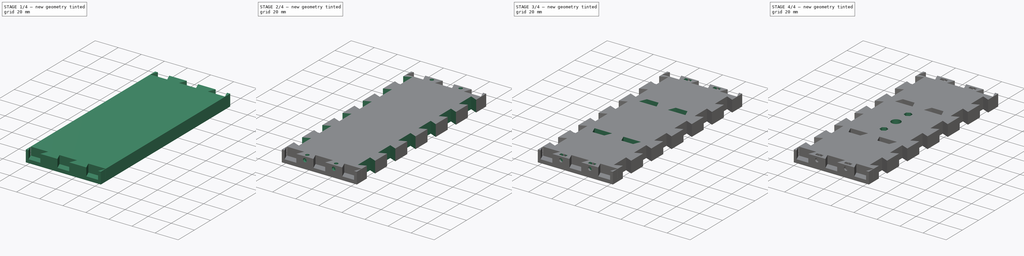
[diagram: build sequence overview — one tinted view per stage of 4, left to right]
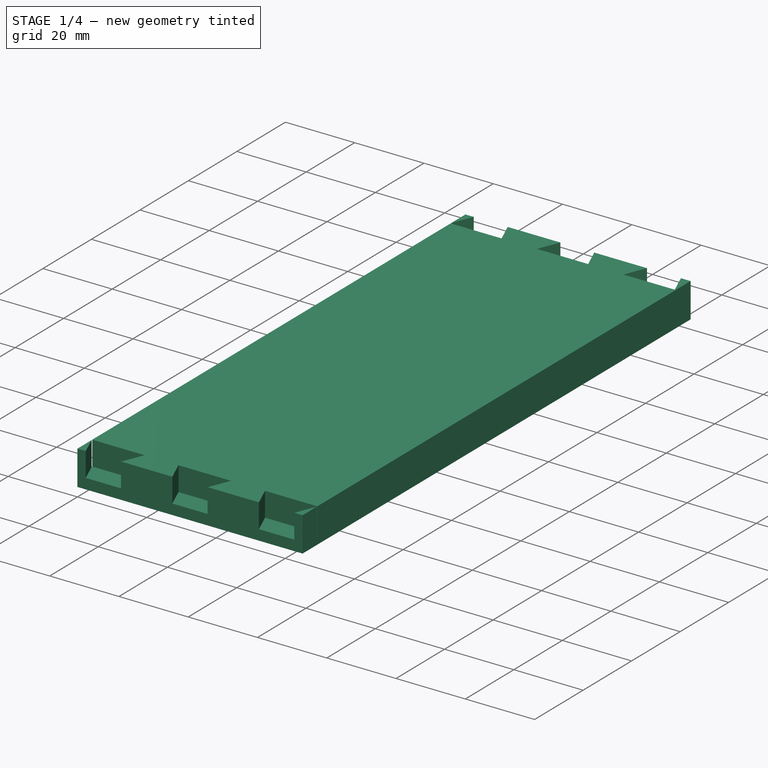
[diagram: stage 1 of 4 — iso view after this stage's code; geometry added in this stage tinted green]
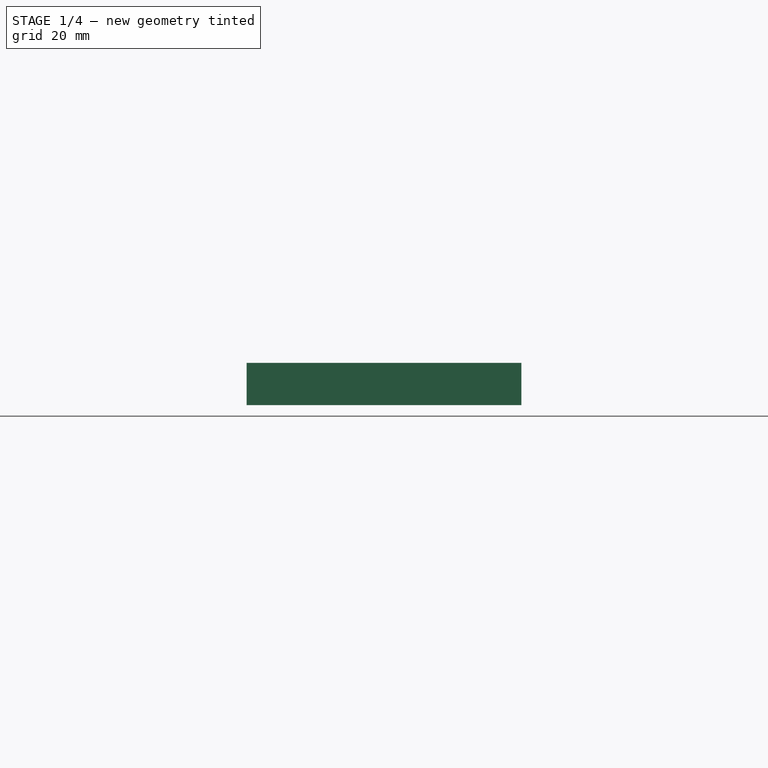
[diagram: stage 1 of 4 — front view after this stage's code; geometry added in this stage tinted green]
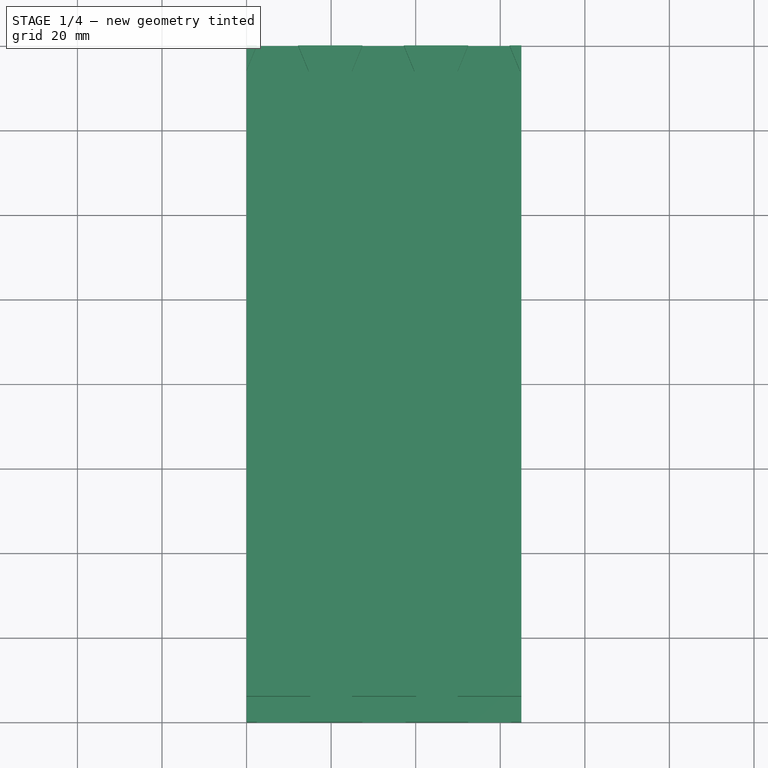
[diagram: stage 1 of 4 — top view after this stage's code; geometry added in this stage tinted green]
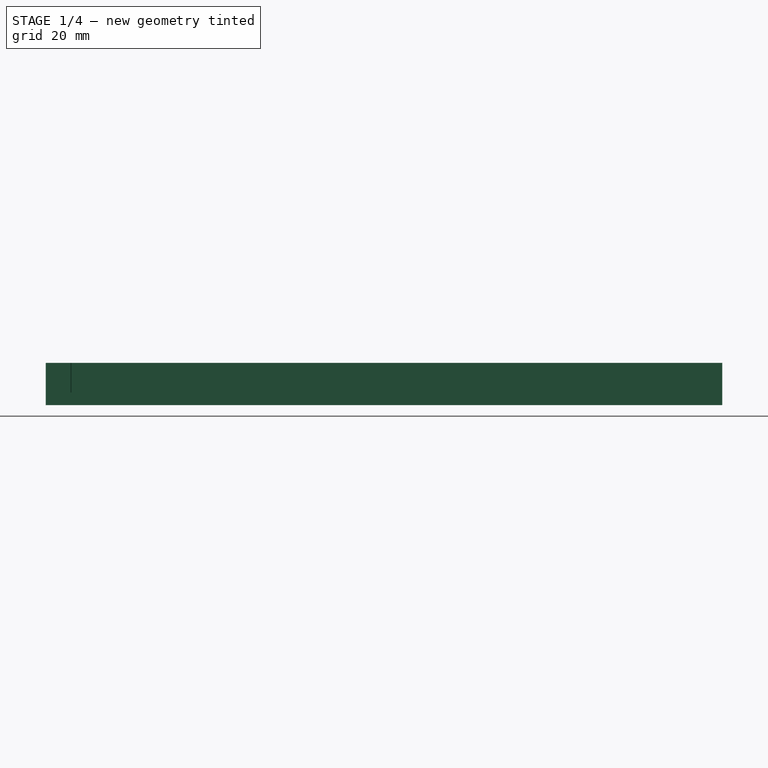
[diagram: stage 1 of 4 — right view after this stage's code; geometry added in this stage tinted green]
FCSTD DOCUMENT  (FreeCAD 0.17R13541 (Git))
Label: cross_beam_v2
License: All rights reserved
LicenseURL: http://en.wikipedia.org/wiki/All_rights_reserved
objects: Sketcher::SketchObject×10, PartDesign::Pocket×9, PartDesign::Pad×1, PartDesign::Body×1
note: 31 computed .brp shape members not serialized (recipe doc carries the construction recipe); baked Part::Feature solids carry a one-line shape summary decoded from their .brp

FEATURE [Sketcher::SketchObject] Sketch
  MapMode = 5
  Support = -> [XY_Plane]
  sketch-geometry (4):
    g0: LineSegment StartX=0 StartY=160 StartZ=0 EndX=65 EndY=160 EndZ=0
    g1: LineSegment StartX=65 StartY=160 StartZ=0 EndX=65 EndY=0 EndZ=0
    g2: LineSegment StartX=65 StartY=0 StartZ=0 EndX=0 EndY=0 EndZ=0
    g3: LineSegment StartX=0 StartY=0 StartZ=0 EndX=0 EndY=160 EndZ=0
  constraints (11):
    c: Coincident(g0,g1)
    c: Coincident(g1,g2)
    c: Coincident(g2,g3)
    c: Coincident(g3,g0)
    c: Horizontal(g0)
    c: Horizontal(g2)
    c: Vertical(g1)
    c: Vertical(g3)
    c: Coincident(g2,g-1)
    c: DistanceX(g0,g0) = 65
    c: DistanceY(g3,g3) = 160
FEATURE [PartDesign::Pad] Pad
  Length = 10
  Length2 = 100
  Profile = -> Sketch
  Type = 0
FEATURE [Sketcher::SketchObject] Sketch001
  ExternalGeometry = -> [Pad]
  MapMode = 5
  Placement = pos=(0,0,10) rot=(0,0,1;0rad)
  Support = -> [Pad]
  sketch-geometry (24):
    g0: LineSegment StartX=24.9 StartY=6.1 StartZ=0 EndX=40.1 EndY=6.1 EndZ=0
    g1: LineSegment StartX=27.4 StartY=0 StartZ=0 EndX=37.6 EndY=0 EndZ=0
    g2: LineSegment StartX=24.9 StartY=6.1 StartZ=0 EndX=27.4 EndY=0 EndZ=0
    g3: LineSegment StartX=40.1 StartY=6.1 StartZ=0 EndX=37.6 EndY=0 EndZ=0
    g4: LineSegment StartX=49.9 StartY=6.1 StartZ=0 EndX=65.1 EndY=6.1 EndZ=0
    g5: LineSegment StartX=52.4 StartY=0 StartZ=0 EndX=62.6 EndY=0 EndZ=0
    g6: LineSegment StartX=49.9 StartY=6.1 StartZ=0 EndX=52.4 EndY=0 EndZ=0
    g7: LineSegment StartX=65.1 StartY=6.1 StartZ=0 EndX=62.6 EndY=0 EndZ=0
    g8: LineSegment StartX=-0.1 StartY=6.1 StartZ=0 EndX=15.1 EndY=6.1 EndZ=0
    g9: LineSegment StartX=2.4 StartY=0 StartZ=0 EndX=12.6 EndY=0 EndZ=0
    g10: LineSegment StartX=-0.1 StartY=6.1 StartZ=0 EndX=2.4 EndY=0 EndZ=0
    g11: LineSegment StartX=15.1 StartY=6.1 StartZ=0 EndX=12.6 EndY=0 EndZ=0
    g12: LineSegment StartX=39.7 StartY=153.9 StartZ=0 EndX=24.9 EndY=153.9 EndZ=0
    g13: LineSegment StartX=37.2 StartY=160 StartZ=0 EndX=27.4 EndY=160 EndZ=0
    g14: LineSegment StartX=39.7 StartY=153.9 StartZ=0 EndX=37.2 EndY=160 EndZ=0
    g15: LineSegment StartX=24.9 StartY=153.9 StartZ=0 EndX=27.4 EndY=160 EndZ=0
    g16: LineSegment StartX=14.7 StartY=153.9 StartZ=0 EndX=-0.1 EndY=153.9 EndZ=0
    g17: LineSegment StartX=12.2 StartY=160 StartZ=0 EndX=2.4 EndY=160 EndZ=0
    g18: LineSegment StartX=14.7 StartY=153.9 StartZ=0 EndX=12.2 EndY=160 EndZ=0
    g19: LineSegment StartX=-0.1 StartY=153.9 StartZ=0 EndX=2.4 EndY=160 EndZ=0
    g20: LineSegment StartX=64.7 StartY=153.9 StartZ=0 EndX=49.9 EndY=153.9 EndZ=0
    g21: LineSegment StartX=62.2 StartY=160 StartZ=0 EndX=52.4 EndY=160 EndZ=0
    g22: LineSegment StartX=64.7 StartY=153.9 StartZ=0 EndX=62.2 EndY=160 EndZ=0
    g23: LineSegment StartX=49.9 StartY=153.9 StartZ=0 EndX=52.4 EndY=160 EndZ=0
  constraints (73):
    c: Horizontal(g0)
    c: Horizontal(g1)
    c: Coincident(g0,g2)
    c: Coincident(g0,g3)
    c: Coincident(g1,g2)
    c: Coincident(g1,g3)
    c: DistanceX(g0,g0) = 15.2
    c: DistanceX(g1,g1) = 10.2
    c: DistanceY(g1,g0) = 6.1
    c: Equal(g3,g2)
    c: Horizontal(g4)
    c: Horizontal(g5)
    c: Coincident(g4,g6)
    c: Coincident(g4,g7)
    c: Coincident(g5,g6)
    c: Coincident(g5,g7)
    c: Equal(g0,g4) = 15.2
    c: Equal(g1,g5) = 10.2
    c: DistanceY(g5,g4) = 6.1
    c: Equal(g7,g6)
    c: Horizontal(g8)
    c: Horizontal(g9)
    c: Coincident(g8,g10)
    c: Coincident(g8,g11)
    c: Coincident(g9,g10)
    c: Coincident(g9,g11)
    c: Equal(g0,g8) = 15.2
    c: Equal(g1,g9) = 10.2
    c: DistanceY(g9,g8) = 6.1
    c: Equal(g11,g10)
    c: PointOnObject(g9,g-1)
    c: PointOnObject(g1,g-1)
    c: PointOnObject(g5,g-1)
    c: DistanceX(g0,g4) = 9.8
    c: DistanceX(g8,g0) = 9.8
    c: DistanceX(g-1,g1) = 27.4
    c: Horizontal(g12)
    c: Horizontal(g13)
    c: Coincident(g12,g14)
    c: Coincident(g12,g15)
    c: Coincident(g13,g14)
    c: Coincident(g13,g15)
    c: Horizontal(g16)
    c: Horizontal(g17)
    c: Coincident(g16,g18)
    c: Coincident(g16,g19)
    c: Coincident(g17,g18)
    c: Coincident(g17,g19)
    c: Equal(g12,g16) = 15.2
    c: Equal(g13,g17) = 10.2
    c: Horizontal(g20)
    c: Horizontal(g21)
    c: Coincident(g20,g22)
    c: Coincident(g20,g23)
    c: Coincident(g21,g22)
    c: Coincident(g21,g23)
    c: Equal(g12,g20) = 15.2
    c: Equal(g13,g21) = 10.2
    c: PointOnObject(g17,g-4)
    c: PointOnObject(g13,g-4)
    c: PointOnObject(g21,g-4)
    c: DistanceX(g17,g13) = 15.2
    c: DistanceX(g13,g21) = 15.2
    c: DistanceX(g12,g20) = 10.2
    c: DistanceX(g16,g12) = 10.2
    c: Equal(g19,g18)
    c: Equal(g18,g15)
    c: Equal(g15,g14)
    c: Equal(g14,g23)
    c: Equal(g23,g22)
    c: DistanceY(g16,g-4) = 6.1
    c: DistanceX(g17,g17) = 9.8
    c: DistanceX(g-4,g13) = 27.4
FEATURE [PartDesign::Pocket] Pocket
  BaseFeature = -> Pad
  Length = 7
  Length2 = 100
  Profile = -> Sketch001
  Type = 0
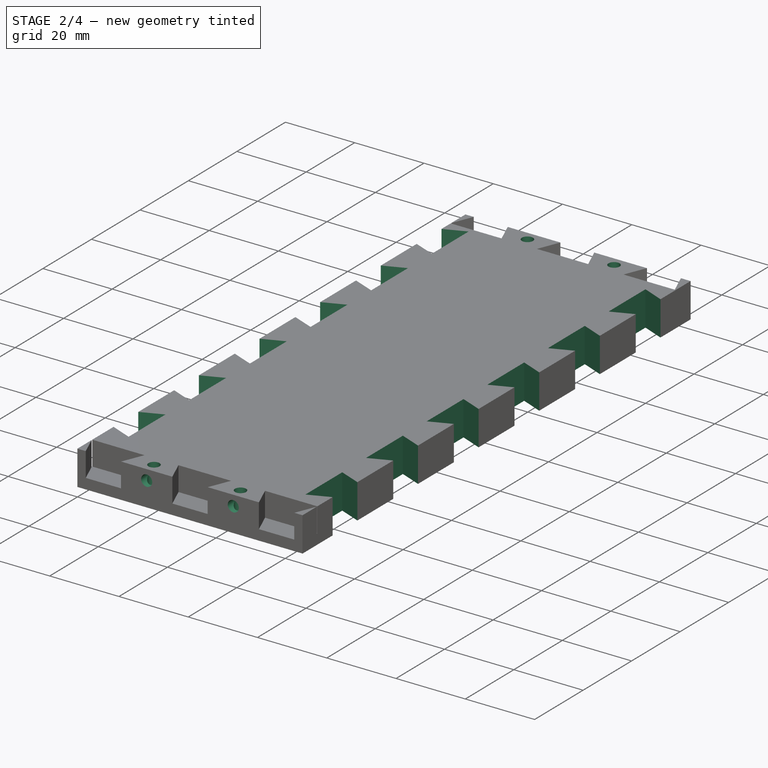
[diagram: stage 2 of 4 — iso view after this stage's code; geometry added in this stage tinted green]
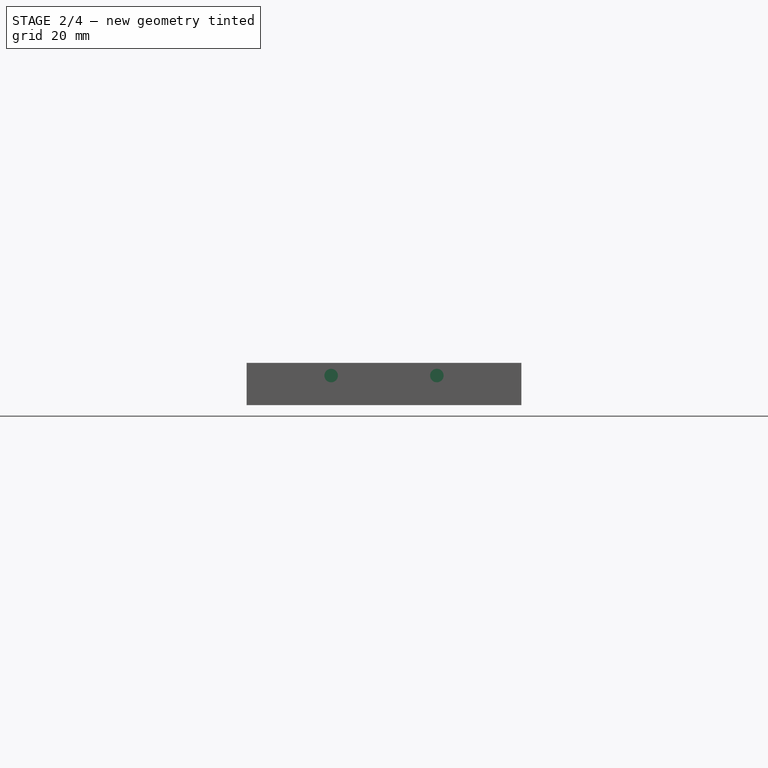
[diagram: stage 2 of 4 — front view after this stage's code; geometry added in this stage tinted green]
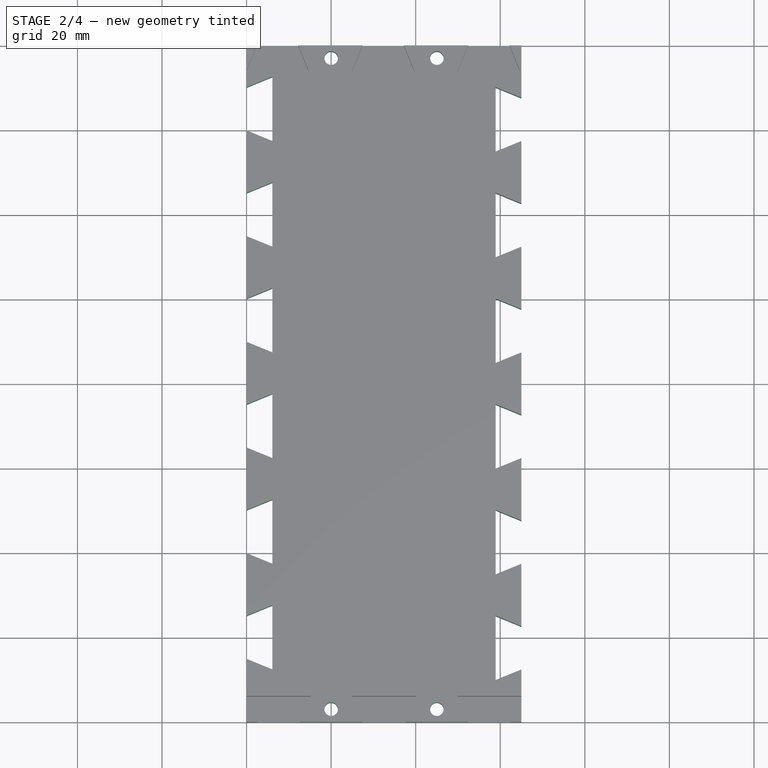
[diagram: stage 2 of 4 — top view after this stage's code; geometry added in this stage tinted green]
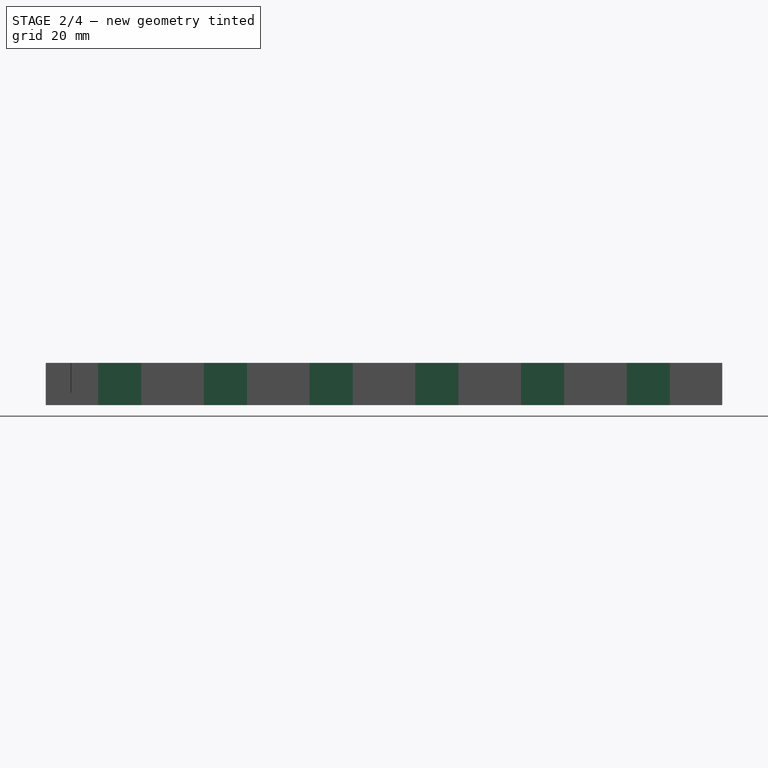
[diagram: stage 2 of 4 — right view after this stage's code; geometry added in this stage tinted green]
FEATURE [Sketcher::SketchObject] Sketch003
  MapMode = 5
  Placement = pos=(0,0,10) rot=(0,0,1;0rad)
  sketch-geometry (4):
    g0: Circle CenterX=20 CenterY=157 CenterZ=0 NormalX=0 NormalY=0 NormalZ=1 AngleXU=0 Radius=1.6
    g1: Circle CenterX=45 CenterY=157 CenterZ=0 NormalX=0 NormalY=0 NormalZ=1 AngleXU=0 Radius=1.6
    g2: Circle CenterX=20 CenterY=3 CenterZ=0 NormalX=0 NormalY=0 NormalZ=1 AngleXU=0 Radius=1.6
    g3: Circle CenterX=45 CenterY=3 CenterZ=0 NormalX=0 NormalY=0 NormalZ=1 AngleXU=0 Radius=1.6
  constraints (12):
    c: Radius(g2) = 1.6
    c: Equal(g2,g3)
    c: Equal(g2,g0)
    c: Equal(g2,g1)
    c: Horizontal(g2,g3)
    c: Horizontal(g0,g1)
    c: DistanceX(g0,g1) = 25
    c: DistanceX(g2,g3) = 25
    c: DistanceY(g-1,g2) = 3
    c: DistanceX(g-1,g2) = 20
    c: DistanceY(g-1,g0) = 157
    c: DistanceX(g-1,g0) = 20
FEATURE [PartDesign::Pocket] Pocket002
  BaseFeature = -> Pocket
  Length = 10
  Length2 = 100
  Profile = -> Sketch003
  Type = 0
FEATURE [Sketcher::SketchObject] Sketch004
  MapMode = 5
  Placement = pos=(0,0,0) rot=(1,0,0;3.14159rad)
  Support = -> [Pocket002]
  sketch-geometry (48):
    g0: LineSegment StartX=58.9 StartY=-84.9 StartZ=0 EndX=58.9 EndY=-100.1 EndZ=0
    g1: LineSegment StartX=65 StartY=-87.4 StartZ=0 EndX=65 EndY=-97.6 EndZ=0
    g2: LineSegment StartX=58.9 StartY=-100.1 StartZ=0 EndX=65 EndY=-97.6 EndZ=0
    g3: LineSegment StartX=58.9 StartY=-84.9 StartZ=0 EndX=65 EndY=-87.4 EndZ=0
    g4: LineSegment StartX=58.9 StartY=-59.9 StartZ=0 EndX=58.9 EndY=-75.1 EndZ=0
    g5: LineSegment StartX=65 StartY=-62.4 StartZ=0 EndX=65 EndY=-72.6 EndZ=0
    g6: LineSegment StartX=58.9 StartY=-75.1 StartZ=0 EndX=65 EndY=-72.6 EndZ=0
    g7: LineSegment StartX=58.9 StartY=-59.9 StartZ=0 EndX=65 EndY=-62.4 EndZ=0
    g8: LineSegment StartX=58.9 StartY=-34.9 StartZ=0 EndX=58.9 EndY=-50.1 EndZ=0
    g9: LineSegment StartX=65 StartY=-37.4 StartZ=0 EndX=65 EndY=-47.6 EndZ=0
    g10: LineSegment StartX=58.9 StartY=-50.1 StartZ=0 EndX=65 EndY=-47.6 EndZ=0
    g11: LineSegment StartX=58.9 StartY=-34.9 StartZ=0 EndX=65 EndY=-37.4 EndZ=0
    g12: LineSegment StartX=58.9 StartY=-9.9 StartZ=0 EndX=58.9 EndY=-25.1 EndZ=0
    g13: LineSegment StartX=65 StartY=-12.4 StartZ=0 EndX=65 EndY=-22.6 EndZ=0
    g14: LineSegment StartX=58.9 StartY=-25.1 StartZ=0 EndX=65 EndY=-22.6 EndZ=0
    g15: LineSegment StartX=58.9 StartY=-9.9 StartZ=0 EndX=65 EndY=-12.4 EndZ=0
    g16: LineSegment StartX=58.9 StartY=-134.9 StartZ=0 EndX=58.9 EndY=-150.1 EndZ=0
    g17: LineSegment StartX=65 StartY=-137.4 StartZ=0 EndX=65 EndY=-147.6 EndZ=0
    g18: LineSegment StartX=58.9 StartY=-150.1 StartZ=0 EndX=65 EndY=-147.6 EndZ=0
    g19: LineSegment StartX=58.9 StartY=-134.9 StartZ=0 EndX=65 EndY=-137.4 EndZ=0
    g20: LineSegment StartX=58.9 StartY=-109.9 StartZ=0 EndX=58.9 EndY=-125.1 EndZ=0
    g21: LineSegment StartX=65 StartY=-112.4 StartZ=0 EndX=65 EndY=-122.6 EndZ=0
    g22: LineSegment StartX=58.9 StartY=-125.1 StartZ=0 EndX=65 EndY=-122.6 EndZ=0
    g23: LineSegment StartX=58.9 StartY=-109.9 StartZ=0 EndX=65 EndY=-112.4 EndZ=0
    g24: LineSegment StartX=0 StartY=-14.9 StartZ=0 EndX=0 EndY=-25.1 EndZ=0
    g25: LineSegment StartX=6.1 StartY=-12.4 StartZ=0 EndX=6.1 EndY=-27.6 EndZ=0
    g26: LineSegment StartX=0 StartY=-25.1 StartZ=0 EndX=6.1 EndY=-27.6 EndZ=0
    g27: LineSegment StartX=0 StartY=-14.9 StartZ=0 EndX=6.1 EndY=-12.4 EndZ=0
    g28: LineSegment StartX=0 StartY=-39.9 StartZ=0 EndX=0 EndY=-50.1 EndZ=0
    g29: LineSegment StartX=6.1 StartY=-37.4 StartZ=0 EndX=6.1 EndY=-52.6 EndZ=0
    g30: LineSegment StartX=0 StartY=-50.1 StartZ=0 EndX=6.1 EndY=-52.6 EndZ=0
    g31: LineSegment StartX=0 StartY=-39.9 StartZ=0 EndX=6.1 EndY=-37.4 EndZ=0
    g32: LineSegment StartX=0 StartY=-64.9 StartZ=0 EndX=0 EndY=-75.1 EndZ=0
    g33: LineSegment StartX=6.1 StartY=-62.4 StartZ=0 EndX=6.1 EndY=-77.6 EndZ=0
    g34: LineSegment StartX=0 StartY=-75.1 StartZ=0 EndX=6.1 EndY=-77.6 EndZ=0
    g35: LineSegment StartX=0 StartY=-64.9 StartZ=0 EndX=6.1 EndY=-62.4 EndZ=0
    g36: LineSegment StartX=0 StartY=-89.9 StartZ=0 EndX=0 EndY=-100.1 EndZ=0
    g37: LineSegment StartX=6.1 StartY=-87.4 StartZ=0 EndX=6.1 EndY=-102.6 EndZ=0
    g38: LineSegment StartX=0 StartY=-100.1 StartZ=0 EndX=6.1 EndY=-102.6 EndZ=0
    g39: LineSegment StartX=0 StartY=-89.9 StartZ=0 EndX=6.1 EndY=-87.4 EndZ=0
    g40: LineSegment StartX=0 StartY=-114.9 StartZ=0 EndX=0 EndY=-125.1 EndZ=0
    g41: LineSegment StartX=6.1 StartY=-112.4 StartZ=0 EndX=6.1 EndY=-127.6 EndZ=0
    g42: LineSegment StartX=0 StartY=-125.1 StartZ=0 EndX=6.1 EndY=-127.6 EndZ=0
    g43: LineSegment StartX=0 StartY=-114.9 StartZ=0 EndX=6.1 EndY=-112.4 EndZ=0
    g44: LineSegment StartX=0 StartY=-139.9 StartZ=0 EndX=0 EndY=-150.1 EndZ=0
    g45: LineSegment StartX=6.1 StartY=-137.4 StartZ=0 EndX=6.1 EndY=-152.6 EndZ=0
    g46: LineSegment StartX=0 StartY=-150.1 StartZ=0 EndX=6.1 EndY=-152.6 EndZ=0
    g47: LineSegment StartX=0 StartY=-139.9 StartZ=0 EndX=6.1 EndY=-137.4 EndZ=0
  constraints (144):
    c: Vertical(g0)
    c: Vertical(g1)
    c: Coincident(g0,g3)
    c: Coincident(g1,g3)
    c: Coincident(g0,g2)
    c: Coincident(g1,g2)
    c: Equal(g2,g3)
    c: DistanceY(g0,g0) = 15.2
    c: DistanceY(g1,g1) = 10.2
    c: DistanceX(g0,g1) = 6.1
    c: Vertical(g4)
    c: Vertical(g5)
    c: Coincident(g4,g7)
    c: Coincident(g5,g7)
    c: Coincident(g4,g6)
    c: Coincident(g5,g6)
    c: Equal(g6,g7)
    c: Equal(g0,g4) = 15.2
    c: Equal(g1,g5) = 10.2
    c: DistanceX(g4,g5) = 6.1
    c: DistanceY(g1,g5) = 25
    c: DistanceX(g5,g1) = 0
    c: Vertical(g8)
    c: Vertical(g9)
    c: Coincident(g8,g11)
    c: Coincident(g9,g11)
    c: Coincident(g8,g10)
    c: Coincident(g9,g10)
    c: Equal(g10,g11)
    c: Equal(g0,g8) = 15.2
    c: Equal(g1,g9) = 10.2
    c: DistanceX(g8,g9) = 6.1
    c: Vertical(g12)
    c: Vertical(g13)
    c: Coincident(g12,g15)
    c: Coincident(g13,g15)
    c: Coincident(g12,g14)
    c: Coincident(g13,g14)
    c: Equal(g14,g15)
    c: Equal(g8,g12) = 15.2
    c: Equal(g9,g13) = 10.2
    c: DistanceX(g12,g13) = 6.1
    c: DistanceY(g9,g13) = 25
    c: DistanceX(g13,g9) = 0
    c: DistanceY(g5,g9) = 25
    c: Vertical(g16)
    c: Vertical(g17)
    c: Coincident(g16,g19)
    c: Coincident(g17,g19)
    c: Coincident(g16,g18)
    c: Coincident(g17,g18)
    c: Equal(g18,g19)
    c: Equal(g0,g16) = 15.2
    c: Equal(g1,g17) = 10.2
    c: DistanceX(g16,g17) = 6.1
    c: Vertical(g20)
    c: Vertical(g21)
    c: Coincident(g20,g23)
    c: Coincident(g21,g23)
    c: Coincident(g20,g22)
    c: Coincident(g21,g22)
    c: Equal(g22,g23)
    c: Equal(g16,g20) = 15.2
    c: Equal(g17,g21) = 10.2
    c: DistanceX(g20,g21) = 6.1
    c: DistanceY(g17,g21) = 25
    c: DistanceX(g21,g17) = 0
    c: DistanceY(g21,g1) = 25
    c: DistanceX(g9,g5) = 0
    c: DistanceX(g1,g21) = 0
    c: DistanceX(g-1,g13) = 65
    c: DistanceY(g4,g-1) = 75.1
    c: Vertical(g25)
    c: Vertical(g24)
    c: Coincident(g25,g27)
    c: Coincident(g24,g27)
    c: Coincident(g24,g26)
    c: Coincident(g25,g26)
    c: DistanceY(g25,g25) = 15.2
    c: DistanceY(g24,g24) = 10.2
    c: DistanceX(g24,g25) = 6.1
    c: Equal(g27,g26)
    c: PointOnObject(g-1,g24)
    c: Vertical(g29)
    c: Vertical(g28)
    c: Coincident(g29,g31)
    c: Coincident(g28,g31)
    c: Coincident(g28,g30)
    c: Coincident(g29,g30)
    c: Equal(g25,g29) = 15.2
    c: Equal(g24,g28) = 10.2
    c: DistanceX(g28,g29) = 6.1
    c: Equal(g31,g30)
    c: PointOnObject(g-1,g28)
    c: DistanceY(g29,g25) = 25
    c: Vertical(g33)
    c: Vertical(g32)
    c: Coincident(g33,g35)
    c: Coincident(g32,g35)
    c: Coincident(g32,g34)
    c: Coincident(g33,g34)
    c: Equal(g25,g33) = 15.2
    c: Equal(g24,g32) = 10.2
    c: DistanceX(g32,g33) = 6.1
    c: Equal(g35,g34)
    c: Vertical(g37)
    c: Vertical(g36)
    c: Coincident(g37,g39)
    c: Coincident(g36,g39)
    c: Coincident(g36,g38)
    c: Coincident(g37,g38)
    c: Equal(g33,g37) = 15.2
    c: Equal(g32,g36) = 10.2
    c: DistanceX(g36,g37) = 6.1
    c: Equal(g39,g38)
    c: DistanceY(g37,g33) = 25
    c: PointOnObject(g-1,g32)
    c: PointOnObject(g-1,g36)
    c: DistanceY(g33,g29) = 25
    c: Vertical(g41)
    c: Vertical(g40)
    c: Coincident(g41,g43)
    c: Coincident(g40,g43)
    c: Coincident(g40,g42)
    c: Coincident(g41,g42)
    c: DistanceX(g40,g41) = 6.1
    c: Equal(g43,g42)
    c: Vertical(g45)
    c: Vertical(g44)
    c: Coincident(g45,g47)
    c: Coincident(g44,g47)
    c: Coincident(g44,g46)
    c: Coincident(g45,g46)
    c: DistanceX(g44,g45) = 6.1
    c: Equal(g47,g46)
    c: DistanceY(g45,g41) = 25
    c: PointOnObject(g-1,g40)
    c: PointOnObject(g-1,g44)
    c: DistanceY(g41,g41) = 15.2
    c: DistanceY(g40,g40) = 10.2
    c: DistanceY(g41,g37) = 25
    c: DistanceY(g45,g45) = 15.2
    c: DistanceY(g44,g44) = 10.2
    c: DistanceY(g32,g-1) = 75.1
FEATURE [PartDesign::Pocket] Pocket003  label="DoveTail"
  BaseFeature = -> Pocket002
  Length = 10
  Length2 = 100
  Profile = -> Sketch004
  Type = 0
FEATURE [Sketcher::SketchObject] Sketch005
  MapMode = 5
  Placement = pos=(0,0,0) rot=(1,0,0;1.5708rad)
  Support = -> [Pocket003]
  sketch-geometry (2):
    g0: Circle CenterX=20 CenterY=7 CenterZ=0 NormalX=0 NormalY=0 NormalZ=1 AngleXU=0 Radius=1.6
    g1: Circle CenterX=45 CenterY=7 CenterZ=0 NormalX=0 NormalY=0 NormalZ=1 AngleXU=0 Radius=1.6
  constraints (6):
    c: Horizontal(g0,g1)
    c: Radius(g0) = 1.6
    c: Equal(g0,g1)
    c: DistanceX(g0,g1) = 25
    c: DistanceX(g-1,g0) = 20
    c: DistanceY(g-1,g0) = 7
FEATURE [PartDesign::Pocket] Pocket004
  BaseFeature = -> Pocket003
  Length = 10
  Length2 = 100
  Profile = -> Sketch005
  Type = 0
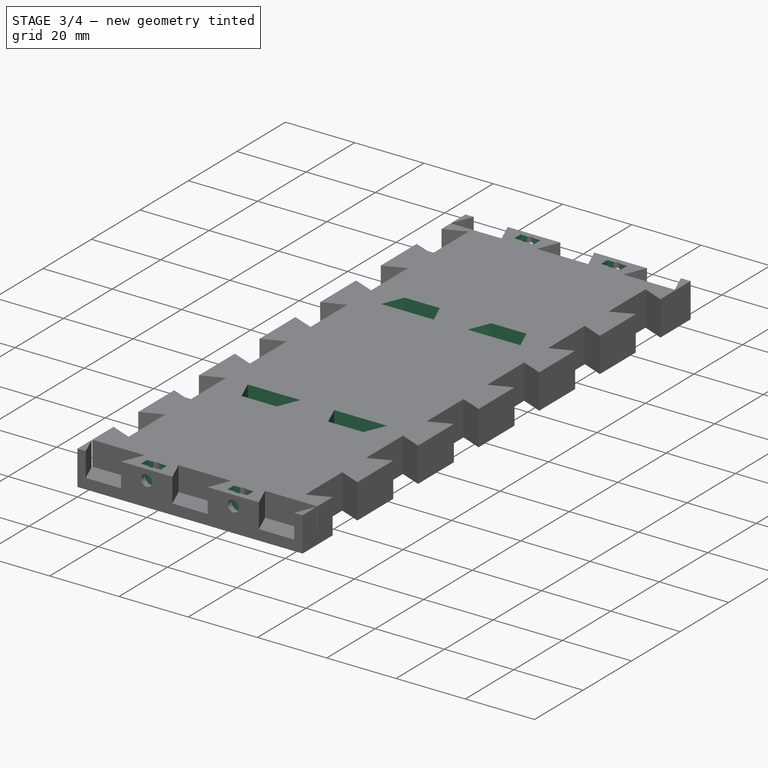
[diagram: stage 3 of 4 — iso view after this stage's code; geometry added in this stage tinted green]
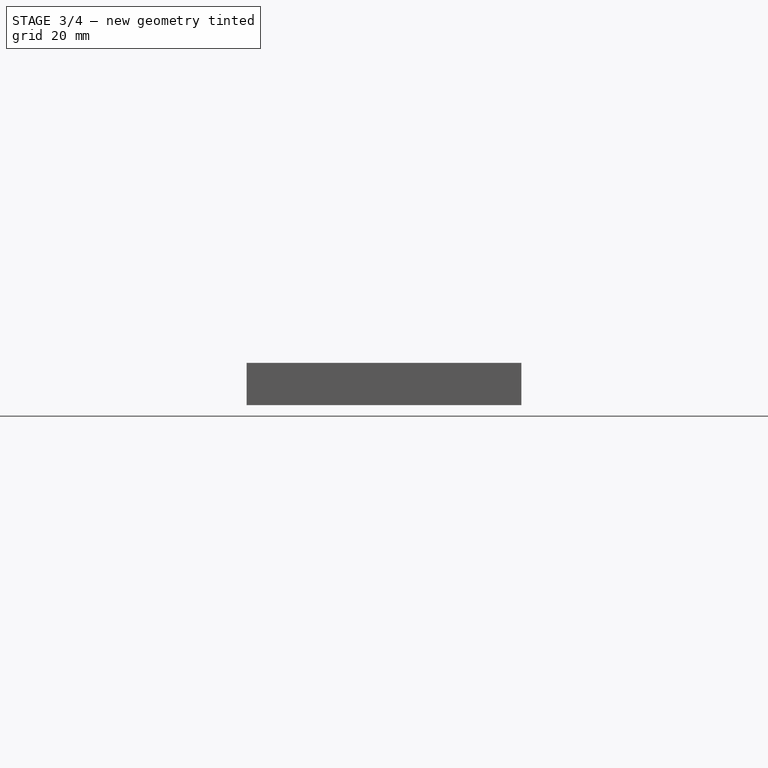
[diagram: stage 3 of 4 — front view after this stage's code; geometry added in this stage tinted green]
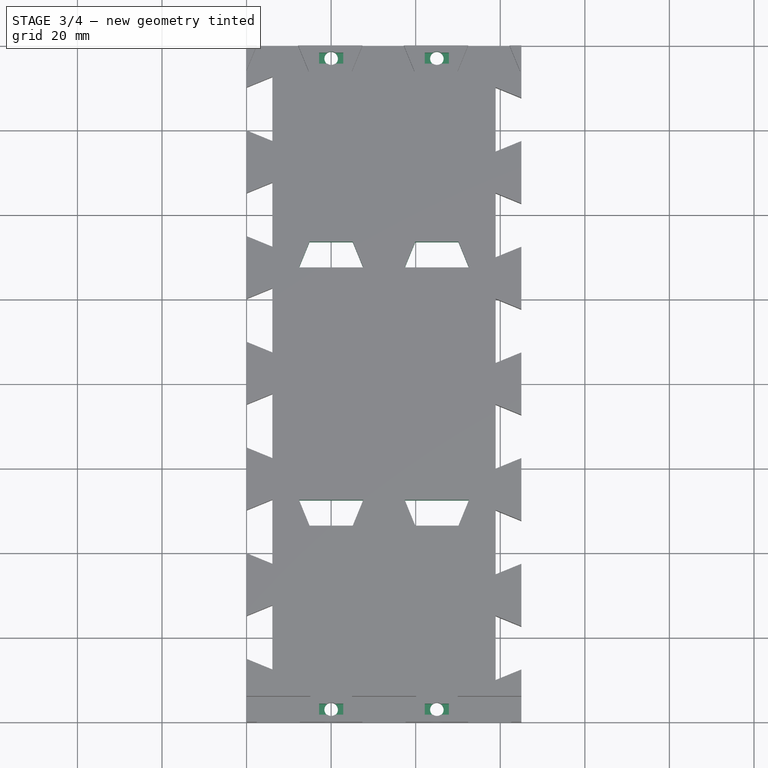
[diagram: stage 3 of 4 — top view after this stage's code; geometry added in this stage tinted green]
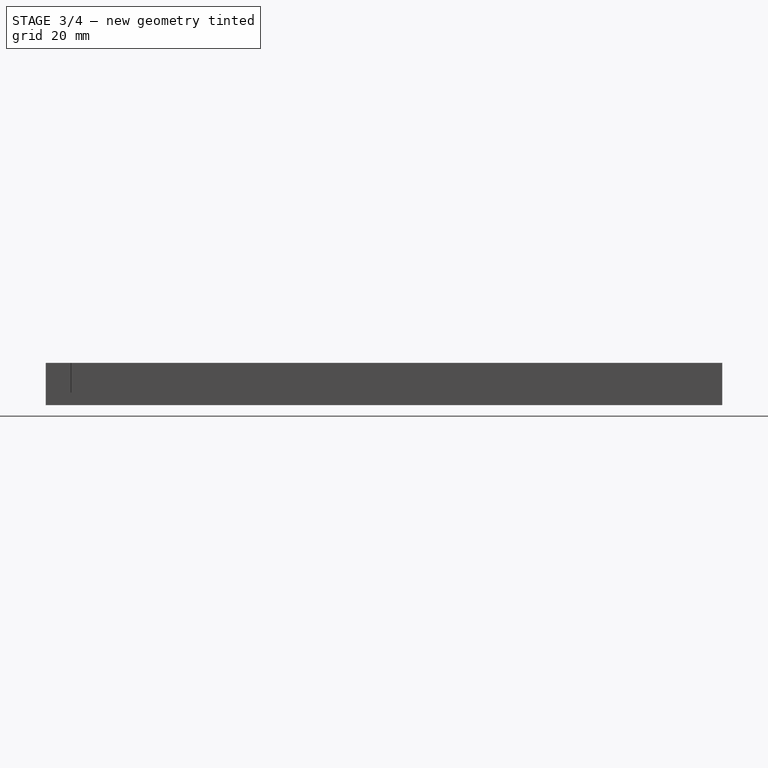
[diagram: stage 3 of 4 — right view after this stage's code; geometry added in this stage tinted green]
FEATURE [Sketcher::SketchObject] Sketch006
  MapMode = 5
  Placement = pos=(0,160,0) rot=(0,0.707107,0.707107;3.14159rad)
  Support = -> [Pocket004]
  sketch-geometry (2):
    g0: Circle CenterX=-45 CenterY=7 CenterZ=0 NormalX=0 NormalY=0 NormalZ=1 AngleXU=0 Radius=1.6
    g1: Circle CenterX=-20 CenterY=7 CenterZ=0 NormalX=0 NormalY=0 NormalZ=1 AngleXU=0 Radius=1.6
  constraints (6):
    c: Horizontal(g0,g1)
    c: Radius(g0) = 1.6
    c: Equal(g0,g1)
    c: DistanceX(g0,g1) = 25
    c: DistanceX(g1,g-1) = 20
    c: DistanceY(g-1,g1) = 7
FEATURE [PartDesign::Pocket] Pocket005
  BaseFeature = -> Pocket004
  Length = 10
  Length2 = 100
  Profile = -> Sketch006
  Type = 0
FEATURE [Sketcher::SketchObject] Sketch007
  MapMode = 5
  Placement = pos=(0,0,10) rot=(0,0,1;0rad)
  Support = -> [Pocket005]
  sketch-geometry (16):
    g0: LineSegment StartX=17.15 StartY=158.3 StartZ=0 EndX=22.85 EndY=158.3 EndZ=0
    g1: LineSegment StartX=22.85 StartY=158.3 StartZ=0 EndX=22.85 EndY=155.7 EndZ=0
    g2: LineSegment StartX=22.85 StartY=155.7 StartZ=0 EndX=17.15 EndY=155.7 EndZ=0
    g3: LineSegment StartX=17.15 StartY=155.7 StartZ=0 EndX=17.15 EndY=158.3 EndZ=0
    g4: LineSegment StartX=42.15 StartY=158.3 StartZ=0 EndX=47.85 EndY=158.3 EndZ=0
    g5: LineSegment StartX=47.85 StartY=158.3 StartZ=0 EndX=47.85 EndY=155.7 EndZ=0
    g6: LineSegment StartX=47.85 StartY=155.7 StartZ=0 EndX=42.15 EndY=155.7 EndZ=0
    g7: LineSegment StartX=42.15 StartY=155.7 StartZ=0 EndX=42.15 EndY=158.3 EndZ=0
    g8: LineSegment StartX=17.15 StartY=4.3 StartZ=0 EndX=22.85 EndY=4.3 EndZ=0
    g9: LineSegment StartX=22.85 StartY=4.3 StartZ=0 EndX=22.85 EndY=1.7 EndZ=0
    g10: LineSegment StartX=22.85 StartY=1.7 StartZ=0 EndX=17.15 EndY=1.7 EndZ=0
    g11: LineSegment StartX=17.15 StartY=1.7 StartZ=0 EndX=17.15 EndY=4.3 EndZ=0
    g12: LineSegment StartX=42.15 StartY=4.3 StartZ=0 EndX=47.85 EndY=4.3 EndZ=0
    g13: LineSegment StartX=47.85 StartY=4.3 StartZ=0 EndX=47.85 EndY=1.7 EndZ=0
    g14: LineSegment StartX=47.85 StartY=1.7 StartZ=0 EndX=42.15 EndY=1.7 EndZ=0
    g15: LineSegment StartX=42.15 StartY=1.7 StartZ=0 EndX=42.15 EndY=4.3 EndZ=0
  constraints (48):
    c: Coincident(g0,g1)
    c: Coincident(g1,g2)
    c: Coincident(g2,g3)
    c: Coincident(g3,g0)
    c: Horizontal(g0)
    c: Horizontal(g2)
    c: Vertical(g1)
    c: Vertical(g3)
    c: DistanceX(g0,g0) = 5.7
    c: DistanceY(g1,g1) = 2.6
    c: Coincident(g4,g5)
    c: Coincident(g5,g6)
    c: Coincident(g6,g7)
    c: Coincident(g7,g4)
    c: Horizontal(g4)
    c: Horizontal(g6)
    c: Vertical(g5)
    c: Vertical(g7)
    c: Equal(g0,g4) = 5.7
    c: Equal(g1,g5) = 2.6
    c: Coincident(g8,g9)
    c: Coincident(g9,g10)
    c: Coincident(g10,g11)
    c: Coincident(g11,g8)
    c: Horizontal(g8)
    c: Horizontal(g10)
    c: Vertical(g9)
    c: Vertical(g11)
    c: Equal(g0,g8) = 5.7
    c: Equal(g1,g9) = 2.6
    c: Coincident(g12,g13)
    c: Coincident(g13,g14)
    c: Coincident(g14,g15)
    c: Coincident(g15,g12)
    c: Horizontal(g12)
    c: Horizontal(g14)
    c: Vertical(g13)
    c: Vertical(g15)
    c: Equal(g8,g12) = 5.7
    c: Equal(g9,g13) = 2.6
    c: DistanceX(g2,g6) = 25
    c: DistanceX(g8,g12) = 25
    c: DistanceY(g-1,g10) = 1.7
    c: DistanceY(g-1,g14) = 1.7
    c: DistanceX(g-1,g8) = 17.15
    c: DistanceX(g-1,g2) = 17.15
    c: DistanceY(g-1,g0) = 158.3
    c: DistanceY(g-1,g4) = 158.3
FEATURE [PartDesign::Pocket] Pocket006
  BaseFeature = -> Pocket005
  Length = 6.15
  Length2 = 100
  Profile = -> Sketch007
  Type = 0
FEATURE [Sketcher::SketchObject] Sketch009
  MapMode = 5
  Placement = pos=(0,0,10) rot=(0,0,1;0rad)
  Support = -> [Pocket006]
  sketch-geometry (16):
    g0: LineSegment StartX=14.9 StartY=113.6 StartZ=0 EndX=25.1 EndY=113.6 EndZ=0
    g1: LineSegment StartX=12.4 StartY=107.5 StartZ=0 EndX=27.6 EndY=107.5 EndZ=0
    g2: LineSegment StartX=25.1 StartY=113.6 StartZ=0 EndX=27.6 EndY=107.5 EndZ=0
    g3: LineSegment StartX=14.9 StartY=113.6 StartZ=0 EndX=12.4 EndY=107.5 EndZ=0
    g4: LineSegment StartX=39.9 StartY=113.6 StartZ=0 EndX=50.1 EndY=113.6 EndZ=0
    g5: LineSegment StartX=37.4 StartY=107.5 StartZ=0 EndX=52.6 EndY=107.5 EndZ=0
    g6: LineSegment StartX=50.1 StartY=113.6 StartZ=0 EndX=52.6 EndY=107.5 EndZ=0
    g7: LineSegment StartX=39.9 StartY=113.6 StartZ=0 EndX=37.4 EndY=107.5 EndZ=0
    g8: LineSegment StartX=12.4 StartY=52.5 StartZ=0 EndX=27.6 EndY=52.5 EndZ=0
    g9: LineSegment StartX=14.9 StartY=46.4 StartZ=0 EndX=25.1 EndY=46.4 EndZ=0
    g10: LineSegment StartX=25.1 StartY=46.4 StartZ=0 EndX=27.6 EndY=52.5 EndZ=0
    g11: LineSegment StartX=12.4 StartY=52.5 StartZ=0 EndX=14.9 EndY=46.4 EndZ=0
    g12: LineSegment StartX=37.4 StartY=52.5 StartZ=0 EndX=52.6 EndY=52.5 EndZ=0
    g13: LineSegment StartX=39.9 StartY=46.4 StartZ=0 EndX=50.1 EndY=46.4 EndZ=0
    g14: LineSegment StartX=50.1 StartY=46.4 StartZ=0 EndX=52.6 EndY=52.5 EndZ=0
    g15: LineSegment StartX=37.4 StartY=52.5 StartZ=0 EndX=39.9 EndY=46.4 EndZ=0
  constraints (48):
    c: Horizontal(g0)
    c: Horizontal(g1)
    c: Coincident(g0,g2)
    c: Coincident(g1,g2)
    c: Coincident(g0,g3)
    c: Coincident(g1,g3)
    c: DistanceX(g0,g0) = 10.2
    c: DistanceX(g1,g1) = 15.2
    c: Equal(g3,g2)
    c: DistanceY(g1,g0) = 6.1
    c: Horizontal(g4)
    c: Horizontal(g5)
    c: Coincident(g4,g6)
    c: Coincident(g5,g6)
    c: Coincident(g4,g7)
    c: Coincident(g5,g7)
    c: Equal(g0,g4) = 10.2
    c: Equal(g1,g5) = 15.2
    c: Equal(g7,g6)
    c: DistanceY(g5,g4) = 6.1
    c: DistanceX(g1,g5) = 25
    c: DistanceY(g-1,g1) = 107.5
    c: Tangent(g5,g1) = -1.5708
    c: DistanceX(g-1,g1) = 12.4
    c: Horizontal(g8)
    c: Horizontal(g9)
    c: Coincident(g8,g10)
    c: Coincident(g9,g10)
    c: Coincident(g8,g11)
    c: Coincident(g9,g11)
    c: DistanceX(g8,g8) = 15.2
    c: DistanceX(g9,g9) = 10.2
    c: Equal(g11,g10)
    c: DistanceY(g9,g8) = 6.1
    c: Horizontal(g12)
    c: Horizontal(g13)
    c: Coincident(g12,g14)
    c: Coincident(g13,g14)
    c: Coincident(g12,g15)
    c: Coincident(g13,g15)
    c: Equal(g8,g12) = 15.2
    c: Equal(g9,g13) = 10.2
    c: Equal(g15,g14)
    c: DistanceY(g13,g12) = 6.1
    c: DistanceX(g8,g12) = 25
    c: DistanceY(g-1,g8) = 52.5
    c: PointOnObject(g12,g8)
    c: DistanceX(g-1,g8) = 12.4
FEATURE [PartDesign::Pocket] Pocket007
  BaseFeature = -> Pocket006
  Length = 11
  Length2 = 100
  Profile = -> Sketch009
  Type = 0
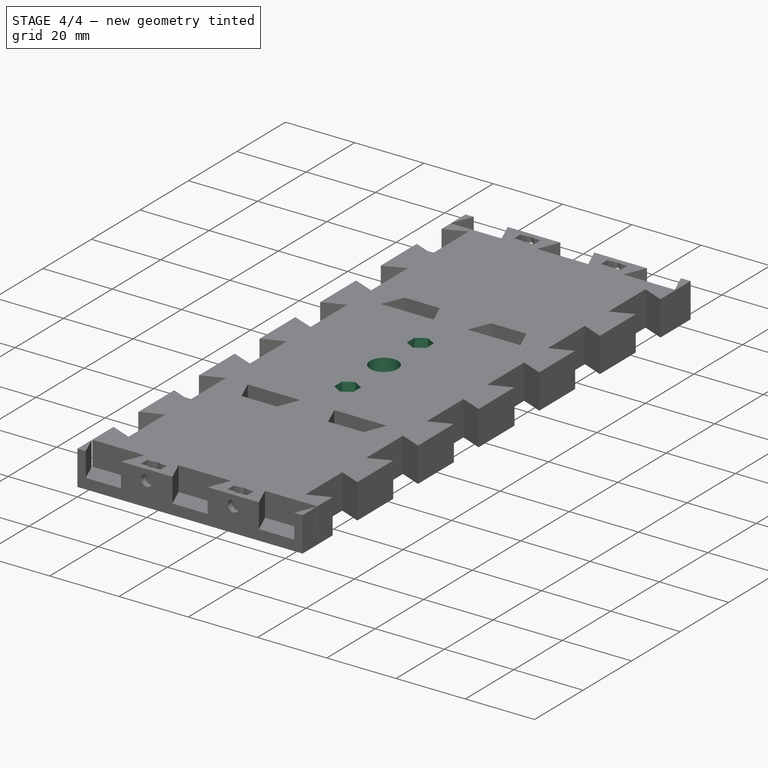
[diagram: stage 4 of 4 — iso view after this stage's code; geometry added in this stage tinted green]
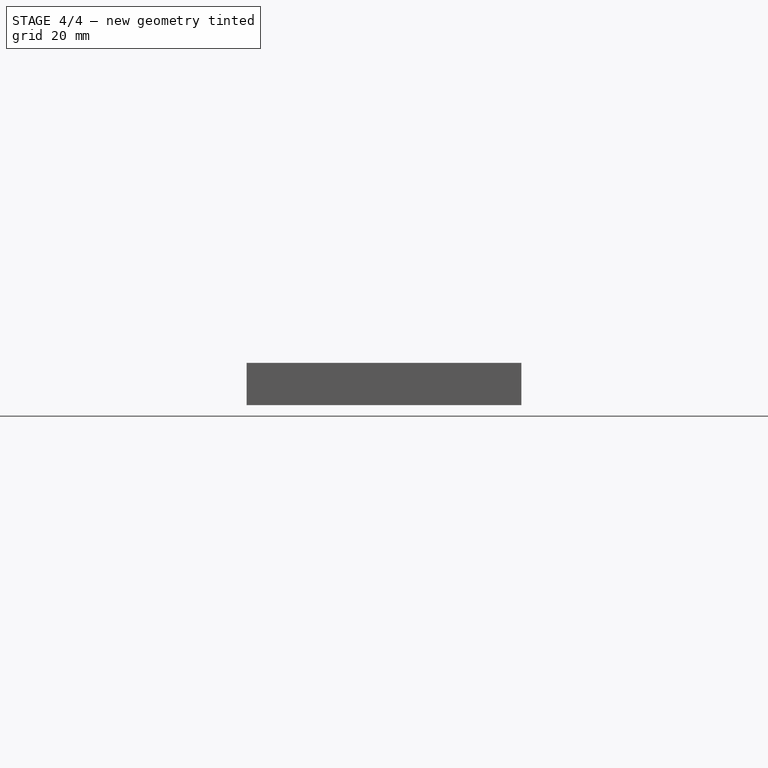
[diagram: stage 4 of 4 — front view after this stage's code; geometry added in this stage tinted green]
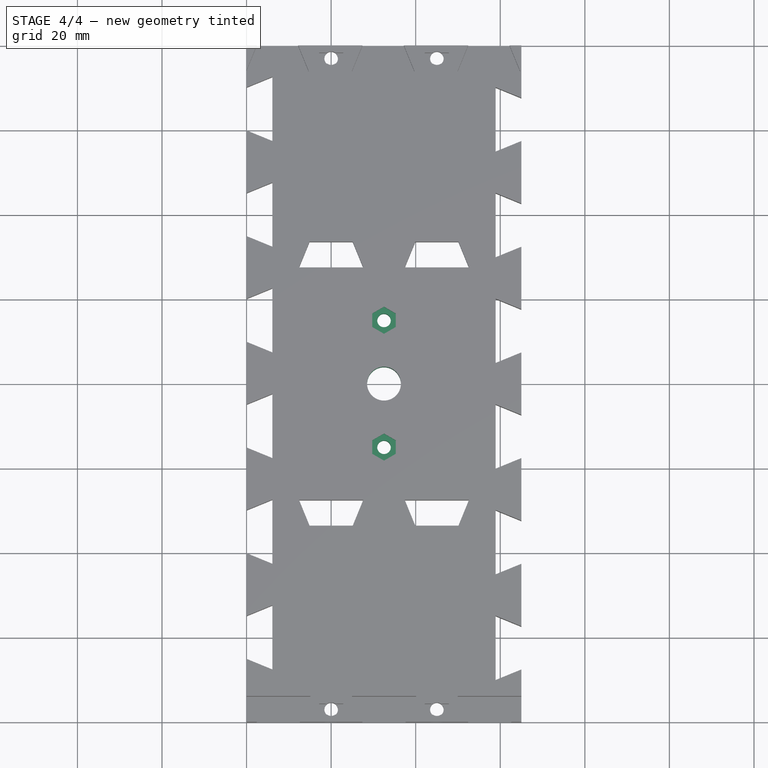
[diagram: stage 4 of 4 — top view after this stage's code; geometry added in this stage tinted green]
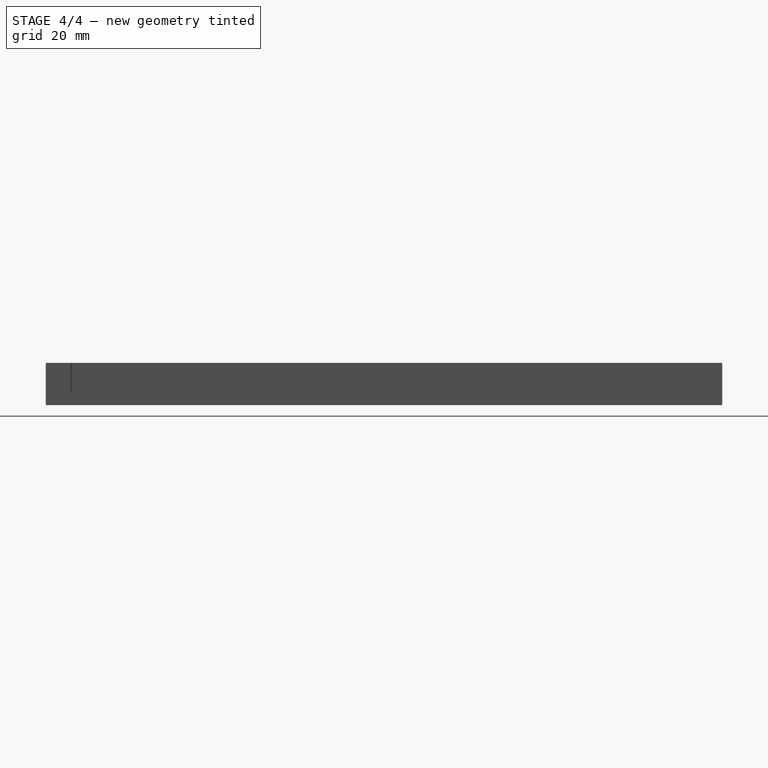
[diagram: stage 4 of 4 — right view after this stage's code; geometry added in this stage tinted green]
FEATURE [Sketcher::SketchObject] Sketch010
  MapMode = 5
  Placement = pos=(0,0,10) rot=(0,0,1;0rad)
  Support = -> [Pocket007]
  sketch-geometry (3):
    g0: Circle CenterX=32.5 CenterY=80 CenterZ=0 NormalX=0 NormalY=0 NormalZ=1 AngleXU=0 Radius=4
    g1: Circle CenterX=32.5 CenterY=95 CenterZ=0 NormalX=0 NormalY=0 NormalZ=1 AngleXU=0 Radius=1.6
    g2: Circle CenterX=32.5 CenterY=65 CenterZ=0 NormalX=0 NormalY=0 NormalZ=1 AngleXU=0 Radius=1.6
  constraints (9):
    c: Radius(g2) = 1.6
    c: Equal(g2,g1)
    c: Vertical(g2,g0)
    c: Vertical(g0,g1)
    c: DistanceY(g2,g1) = 30
    c: Radius(g0) = 4
    c: Symmetric(g1,g2,g0)
    c: DistanceX(g-1,g0) = 32.5
    c: DistanceY(g-1,g0) = 80
FEATURE [PartDesign::Pocket] Pocket008
  BaseFeature = -> Pocket007
  Length = 10
  Length2 = 100
  Profile = -> Sketch010
  Type = 0
FEATURE [Sketcher::SketchObject] Sketch011
  MapMode = 5
  Placement = pos=(0,0,10) rot=(0,0,1;0rad)
  Support = -> [Pocket008]
  sketch-geometry (14):
    g0: LineSegment StartX=35.275 StartY=93.3979 StartZ=0 EndX=35.275 EndY=96.6021 EndZ=0
    g1: LineSegment StartX=35.275 StartY=96.6021 StartZ=0 EndX=32.5 EndY=98.2043 EndZ=0
    g2: LineSegment StartX=32.5 StartY=98.2043 StartZ=0 EndX=29.725 EndY=96.6021 EndZ=0
    g3: LineSegment StartX=29.725 StartY=96.6021 StartZ=0 EndX=29.725 EndY=93.3979 EndZ=0
    g4: LineSegment StartX=29.725 StartY=93.3979 StartZ=0 EndX=32.5 EndY=91.7957 EndZ=0
    g5: LineSegment StartX=32.5 StartY=91.7957 StartZ=0 EndX=35.275 EndY=93.3979 EndZ=0
    g6: Circle [constr] CenterX=32.5 CenterY=95 CenterZ=0 NormalX=0 NormalY=0 NormalZ=1 AngleXU=0 Radius=3.20429
    g7: LineSegment StartX=35.275 StartY=63.3979 StartZ=0 EndX=35.275 EndY=66.6021 EndZ=0
    g8: LineSegment StartX=35.275 StartY=66.6021 StartZ=0 EndX=32.5 EndY=68.2043 EndZ=0
    g9: LineSegment StartX=32.5 StartY=68.2043 StartZ=0 EndX=29.725 EndY=66.6021 EndZ=0
    g10: LineSegment StartX=29.725 StartY=66.6021 StartZ=0 EndX=29.725 EndY=63.3979 EndZ=0
    g11: LineSegment StartX=29.725 StartY=63.3979 StartZ=0 EndX=32.5 EndY=61.7957 EndZ=0
    g12: LineSegment StartX=32.5 StartY=61.7957 StartZ=0 EndX=35.275 EndY=63.3979 EndZ=0
    g13: Circle [constr] CenterX=32.5 CenterY=65 CenterZ=0 NormalX=0 NormalY=0 NormalZ=1 AngleXU=0 Radius=3.20429
  constraints (34):
    c: Coincident(g0,g1)
    c: Coincident(g1,g2)
    c: Coincident(g2,g3)
    c: Coincident(g3,g4)
    c: Coincident(g4,g5)
    c: Coincident(g5,g0)
    c: Equal(g0, g1-g5) x5
    c: PointOnObject(g0,g6)
    c: PointOnObject(g1,g6)
    c: PointOnObject(g2,g6)
    c: PointOnObject(g3,g6)
    c: PointOnObject(g4,g6)
    c: PointOnObject(g5,g6)
    c: Coincident(g7,g8)
    c: Coincident(g8,g9)
    c: Coincident(g9,g10)
    c: Coincident(g10,g11)
    c: Coincident(g11,g12)
    c: Coincident(g12,g7)
    c: Equal(g7, g8-g12) x5
    c: PointOnObject(g7,g13)
    c: PointOnObject(g8,g13)
    c: PointOnObject(g9,g13)
    c: PointOnObject(g10,g13)
    c: PointOnObject(g11,g13)
    c: PointOnObject(g12,g13)
    c: Vertical(g6,g13)
    c: Vertical(g3)
    c: Vertical(g10)
    c: DistanceX(g2,g0) = 5.55
    c: DistanceX(g9,g7) = 5.55
    c: DistanceY(g13,g6) = 30
    c: DistanceX(g-1,g13) = 32.5
    c: DistanceY(g-1,g13) = 65
FEATURE [PartDesign::Pocket] Pocket009
  BaseFeature = -> Pocket008
  Length = 2.7
  Length2 = 100
  Profile = -> Sketch011
  Type = 0
FEATURE [PartDesign::Body] Body
  Group = -> [Sketch,Pad,Sketch001,Pocket,Sketch003,Pocket002,Sketch004,Pocket003,Sketch005,Pocket004,Sketch006,Pocket005,Sketch007,Pocket006,Sketch009,Pocket007,Sketch010,Pocket008,Sketch011,Pocket009]
  Origin = -> Origin
  Tip = -> Pocket009
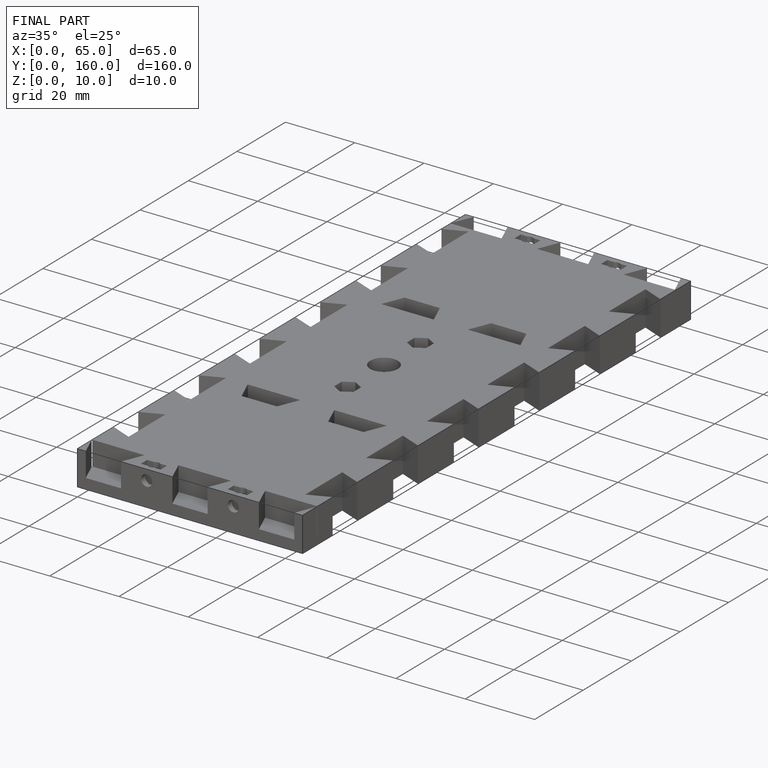
[diagram: finished part — iso view with bounding-box wireframe]
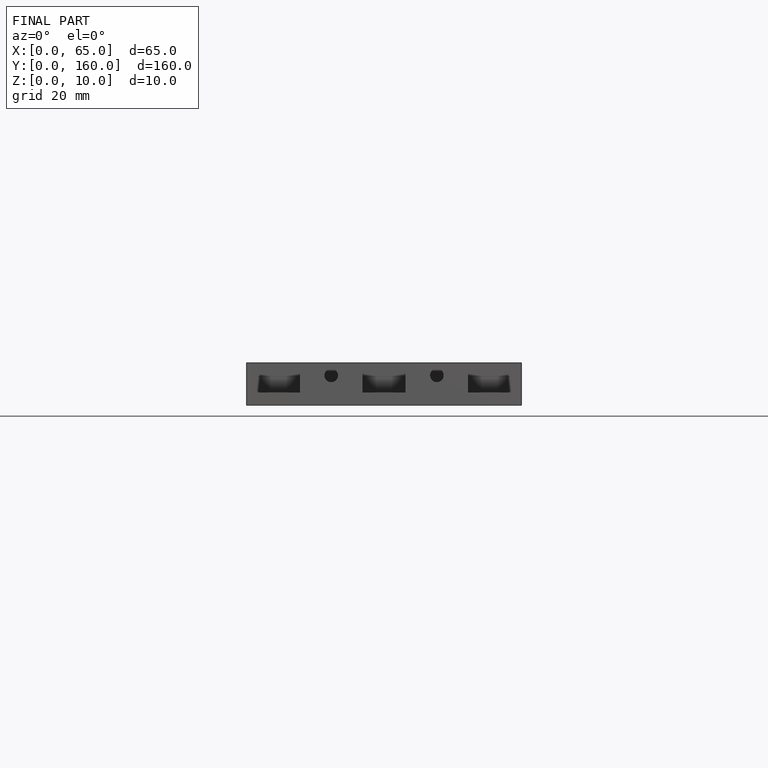
[diagram: finished part — front view with bounding-box wireframe]
